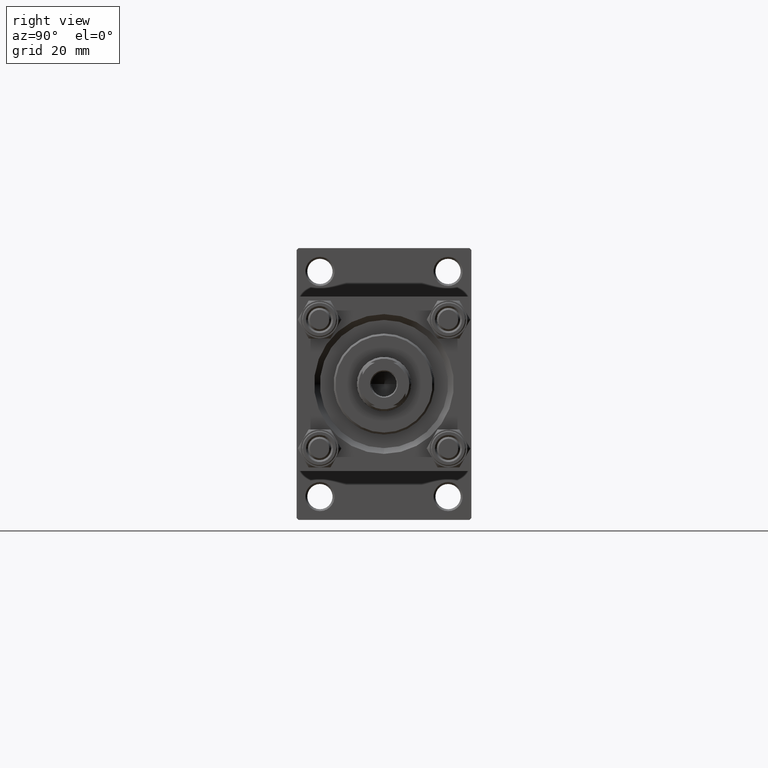
[diagram: clean part render]
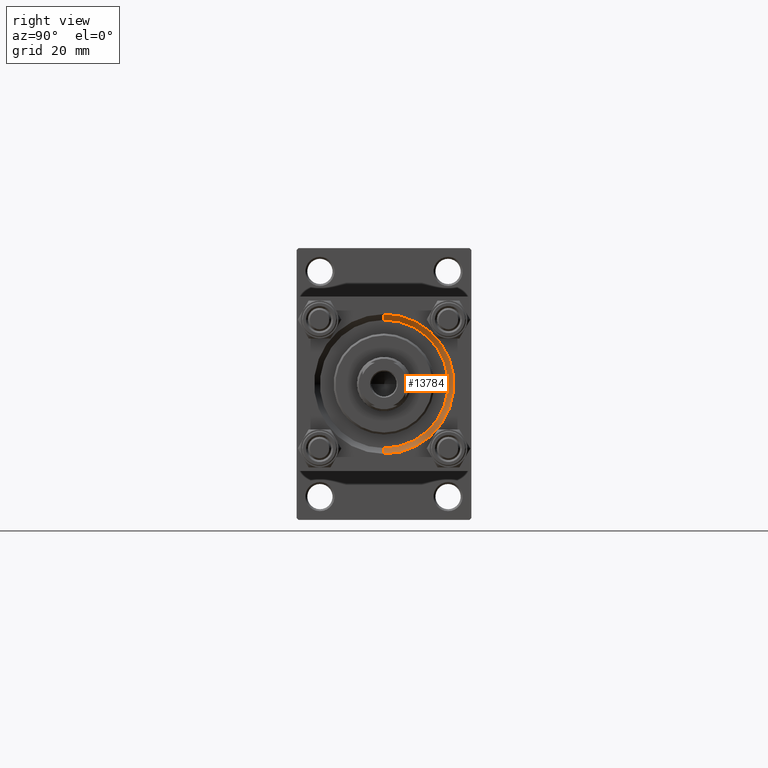
[diagram: same view with one face highlighted and labeled with its STEP entity id]
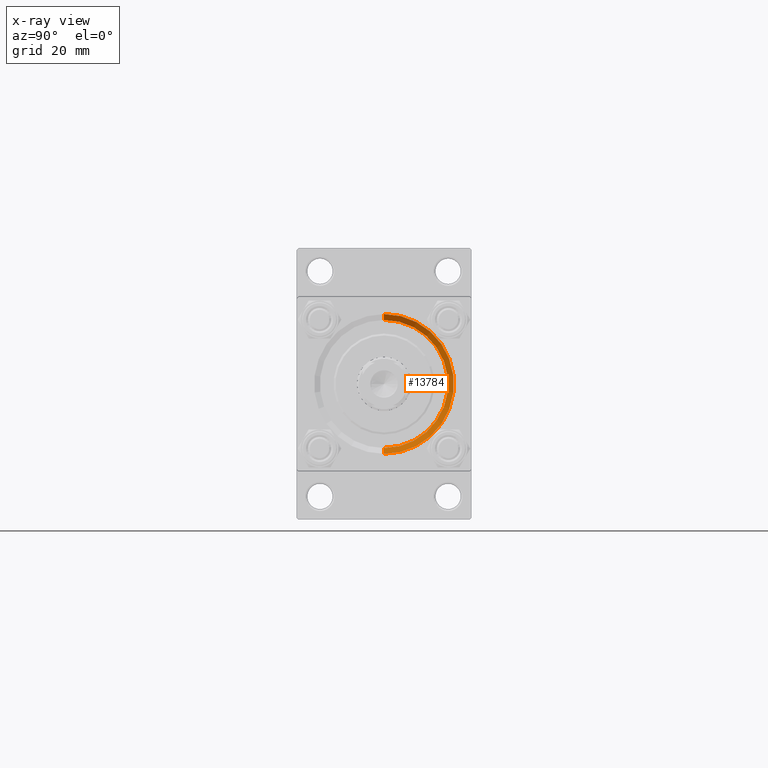
[diagram: x-ray of the same camera — body ghosted, the highlighted face saturated]
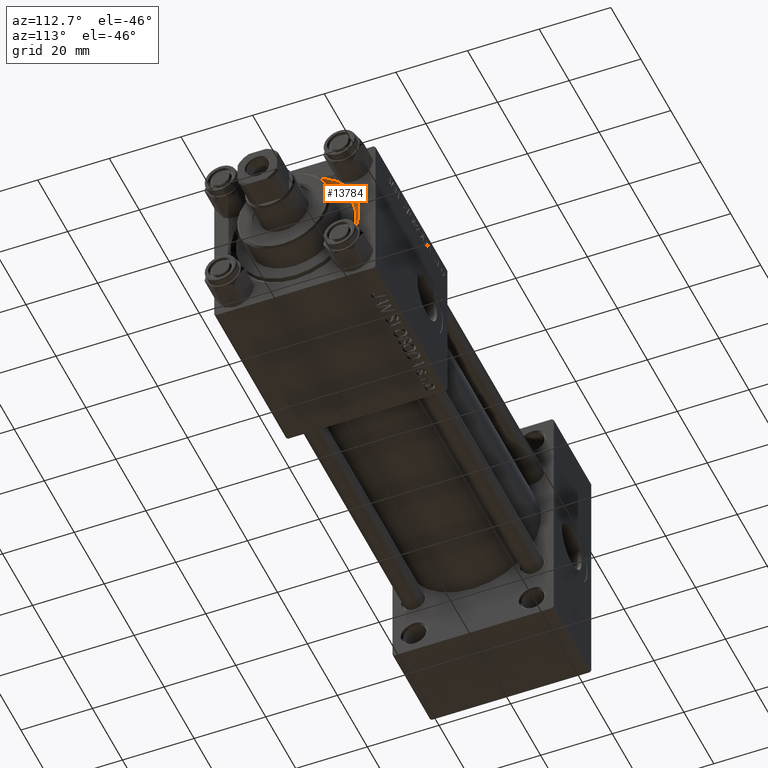
[diagram: same view with one face highlighted and labeled with its STEP entity id]
A machine part, right view. The second image highlights one B-rep face of the part: STEP entity #13784.
The next image is the same camera in x-ray: the body ghosted, the highlighted face saturated — about 0% of this face is hidden behind the body in this view.
A second angle (auxiliary view) of the same face is appended — the face is thin or edge-on in the first view.
In plain terms, the highlighted conical surface has half-angle 45 deg.
Its self-contained STEP definition (entity closure, byte-faithful):
#143 = CARTESIAN_POINT ( 'NONE',  ( 142.5000000000000284, 0.000000000000000000, -16.50000000000000000 ) ) ;
#270 = LINE ( 'NONE', #3561, #45354 ) ;
#3561 = CARTESIAN_POINT ( 'NONE',  ( 142.5000000000000284, 2.020667218593133100E-15, 16.50000000000000000 ) ) ;
#10796 = ORIENTED_EDGE ( 'NONE', *, *, #23182, .F. ) ;
#11045 = ORIENTED_EDGE ( 'NONE', *, *, #45507, .T. ) ;
#12572 = DIRECTION ( 'NONE',  ( 1.000000000000000000, 0.000000000000000000, 0.000000000000000000 ) ) ;
#13784 = ADVANCED_FACE ( 'NONE', ( #23499 ), #32511, .F. ) ;
#15194 = EDGE_LOOP ( 'NONE', ( #22944, #10796, #11045, #42023 ) ) ;
#16169 = AXIS2_PLACEMENT_3D ( 'NONE', #47181, #12572, #17125 ) ;
#16848 = AXIS2_PLACEMENT_3D ( 'NONE', #28437, #24897, #44359 ) ;
#17125 = DIRECTION ( 'NONE',  ( 0.000000000000000000, 0.000000000000000000, 1.000000000000000000 ) ) ;
#17946 = CARTESIAN_POINT ( 'NONE',  ( 144.0000000000000284, 2.204364238465235822E-15, 18.00000000000000355 ) ) ;
#19567 = CARTESIAN_POINT ( 'NONE',  ( 144.0000000000000284, 0.000000000000000000, -18.00000000000000355 ) ) ;
#20286 = EDGE_CURVE ( 'NONE', #32874, #28126, #25689, .T. ) ;
#22944 = ORIENTED_EDGE ( 'NONE', *, *, #32756, .F. ) ;
#23182 = EDGE_CURVE ( 'NONE', #35918, #23201, #46006, .T. ) ;
#23201 = VERTEX_POINT ( 'NONE', #24431 ) ;
#23499 = FACE_OUTER_BOUND ( 'NONE', #15194, .T. ) ;
#24431 = CARTESIAN_POINT ( 'NONE',  ( 142.5000000000000284, 2.020667218593133100E-15, 16.50000000000000000 ) ) ;
#24897 = DIRECTION ( 'NONE',  ( -1.000000000000000000, 0.000000000000000000, -0.000000000000000000 ) ) ;
#25238 = CARTESIAN_POINT ( 'NONE',  ( 142.5000000000000284, 0.000000000000000000, -16.50000000000000000 ) ) ;
#25689 = CIRCLE ( 'NONE', #16848, 18.00000000000000355 ) ;
#28126 = VERTEX_POINT ( 'NONE', #19567 ) ;
#28270 = DIRECTION ( 'NONE',  ( 0.000000000000000000, 0.000000000000000000, -1.000000000000000000 ) ) ;
#28437 = CARTESIAN_POINT ( 'NONE',  ( 144.0000000000000284, 0.000000000000000000, 0.000000000000000000 ) ) ;
#31564 = CARTESIAN_POINT ( 'NONE',  ( 142.5000000000000284, 0.000000000000000000, 0.000000000000000000 ) ) ;
#32511 = CONICAL_SURFACE ( 'NONE', #38975, 16.50000000000000000, 0.7853981633974482790 ) ;
#32756 = EDGE_CURVE ( 'NONE', #23201, #32874, #270, .T. ) ;
#32874 = VERTEX_POINT ( 'NONE', #17946 ) ;
#34734 = LINE ( 'NONE', #143, #48876 ) ;
#34861 = DIRECTION ( 'NONE',  ( 0.7071067811865474617, 8.659560562354932858E-17, 0.7071067811865474617 ) ) ;
#35918 = VERTEX_POINT ( 'NONE', #25238 ) ;
#38897 = DIRECTION ( 'NONE',  ( 1.000000000000000000, 0.000000000000000000, 0.000000000000000000 ) ) ;
#38975 = AXIS2_PLACEMENT_3D ( 'NONE', #31564, #38897, #28270 ) ;
#42023 = ORIENTED_EDGE ( 'NONE', *, *, #20286, .F. ) ;
#44359 = DIRECTION ( 'NONE',  ( 0.000000000000000000, 0.000000000000000000, 1.000000000000000000 ) ) ;
#45354 = VECTOR ( 'NONE', #34861, 1000.000000000000114 ) ;
#45507 = EDGE_CURVE ( 'NONE', #35918, #28126, #34734, .T. ) ;
#46006 = CIRCLE ( 'NONE', #16169, 16.50000000000000000 ) ;
#46387 = DIRECTION ( 'NONE',  ( 0.7071067811865474617, 0.000000000000000000, -0.7071067811865474617 ) ) ;
#47181 = CARTESIAN_POINT ( 'NONE',  ( 142.5000000000000284, 0.000000000000000000, 0.000000000000000000 ) ) ;
#48876 = VECTOR ( 'NONE', #46387, 1000.000000000000114 ) ;